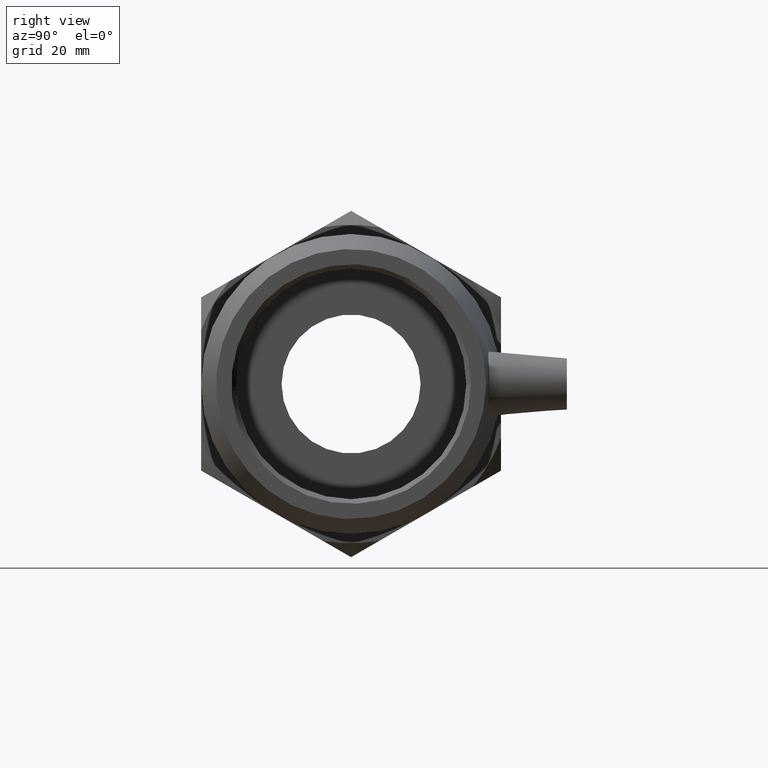
[diagram: clean part render]
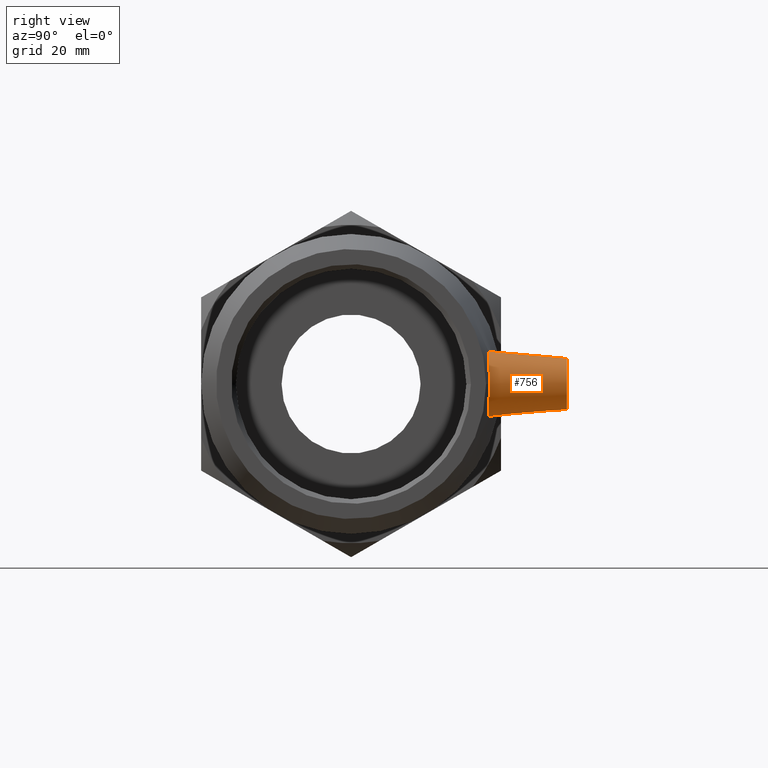
[diagram: same view with one face highlighted and labeled with its STEP entity id]
A machine part, right view. The second image highlights one B-rep face of the part: STEP entity #756.
In plain terms, the highlighted conical surface has half-angle 5 deg.
Its self-contained STEP definition (entity closure, byte-faithful):
#15=B_SPLINE_CURVE_WITH_KNOTS('',3,(#1338,#1339,#1340,#1341,#1342,#1343,
#1344,#1345,#1346,#1347,#1348,#1349,#1350,#1351,#1352,#1353,#1354,#1355,
#1356,#1357,#1358,#1359,#1360,#1361,#1362,#1363,#1364,#1365,#1366,#1367,
#1368,#1369,#1370,#1371),.UNSPECIFIED.,.T.,.F.,(4,2,2,2,2,2,2,2,2,2,2,2,
2,2,2,2,4),(0.,0.344355823465519,0.688711646931037,1.0268337448189,1.36495584270676,
1.70307794059462,2.04120003848249,2.385555861948,2.72991168541352,3.05641943330973,
3.38292718120595,3.71121514704426,4.03950311288258,4.36779107872089,4.69607904455921,
5.02258679245542,5.34909454035163),.UNSPECIFIED.);
#141=FACE_BOUND('',#270,.T.);
#197=FACE_OUTER_BOUND('',#269,.T.);
#269=EDGE_LOOP('',(#670));
#270=EDGE_LOOP('',(#671));
#330=CIRCLE('',#852,7.);
#399=VERTEX_POINT('',#1335);
#400=VERTEX_POINT('',#1337);
#494=EDGE_CURVE('',#399,#399,#330,.T.);
#495=EDGE_CURVE('',#400,#400,#15,.T.);
#670=ORIENTED_EDGE('',*,*,#494,.F.);
#671=ORIENTED_EDGE('',*,*,#495,.F.);
#707=CONICAL_SURFACE('',#851,7.,5.);
#756=ADVANCED_FACE('',(#197,#141),#707,.T.);
#851=AXIS2_PLACEMENT_3D('',#1334,#1059,#1060);
#852=AXIS2_PLACEMENT_3D('',#1336,#1061,#1062);
#1059=DIRECTION('center_axis',(0.,-1.,0.));
#1060=DIRECTION('ref_axis',(-1.,0.,0.));
#1061=DIRECTION('center_axis',(0.,1.,0.));
#1062=DIRECTION('ref_axis',(-1.,0.,0.));
#1334=CARTESIAN_POINT('Origin',(41.65,59.,0.));
#1335=CARTESIAN_POINT('',(48.65,59.,8.57252759403147E-16));
#1336=CARTESIAN_POINT('Origin',(41.65,59.,0.));
#1337=CARTESIAN_POINT('',(41.9376068201201,37.6878551767842,8.85990420529277));
#1338=CARTESIAN_POINT('Ctrl Pts',(41.9376068201203,37.6878551767842,8.85990420529277));
#1339=CARTESIAN_POINT('Ctrl Pts',(40.7958369593861,37.8027381921111,8.88691164590824));
#1340=CARTESIAN_POINT('Ctrl Pts',(39.5844167052391,37.9829967249448,8.67702345975848));
#1341=CARTESIAN_POINT('Ctrl Pts',(37.3636572461179,38.4111003090207,7.77971429765735));
#1342=CARTESIAN_POINT('Ctrl Pts',(36.3535445598685,38.6557295691291,7.0926764624993));
#1343=CARTESIAN_POINT('Ctrl Pts',(34.7732197104203,39.0772807218682,5.51148762438308));
#1344=CARTESIAN_POINT('Ctrl Pts',(34.0910841084743,39.282966746045,4.51620295802403));
#1345=CARTESIAN_POINT('Ctrl Pts',(33.1825549992924,39.5673840405935,2.32423752874025));
#1346=CARTESIAN_POINT('Ctrl Pts',(32.9565316838949,39.6435685738495,1.12707365962621));
#1347=CARTESIAN_POINT('Ctrl Pts',(32.9565316838949,39.6435685738495,-1.12707365962621));
#1348=CARTESIAN_POINT('Ctrl Pts',(33.1825549992924,39.5673840405935,-2.32423752874024));
#1349=CARTESIAN_POINT('Ctrl Pts',(34.0910841084743,39.282966746045,-4.51620295802403));
#1350=CARTESIAN_POINT('Ctrl Pts',(34.7732197104203,39.0772807218682,-5.51148762438308));
#1351=CARTESIAN_POINT('Ctrl Pts',(36.3535445598685,38.6557295691291,-7.0926764624993));
#1352=CARTESIAN_POINT('Ctrl Pts',(37.3636572461179,38.4111003090207,-7.77971429765735));
#1353=CARTESIAN_POINT('Ctrl Pts',(39.5844167052391,37.9829967249448,-8.67702345975848));
#1354=CARTESIAN_POINT('Ctrl Pts',(40.7958369593861,37.8027381921111,-8.88691164590824));
#1355=CARTESIAN_POINT('Ctrl Pts',(43.0201983735093,37.5789265859202,-8.83429656920561));
#1356=CARTESIAN_POINT('Ctrl Pts',(44.1735713456759,37.515614375962,-8.5914786396559));
#1357=CARTESIAN_POINT('Ctrl Pts',(46.2881472599534,37.4934123582677,-7.66185399635411));
#1358=CARTESIAN_POINT('Ctrl Pts',(47.249356435864,37.5315457860825,-6.97513494081177));
#1359=CARTESIAN_POINT('Ctrl Pts',(48.7648891145901,37.6311222348323,-5.40758378100092));
#1360=CARTESIAN_POINT('Ctrl Pts',(49.420724206617,37.6989849278095,-4.41933534697225));
#1361=CARTESIAN_POINT('Ctrl Pts',(50.2893558016887,37.7997214624126,-2.26275360094603));
#1362=CARTESIAN_POINT('Ctrl Pts',(50.5021322325417,37.830031710418,-1.09429321946105));
#1363=CARTESIAN_POINT('Ctrl Pts',(50.5021322325417,37.830031710418,1.09429321946105));
#1364=CARTESIAN_POINT('Ctrl Pts',(50.2893558016887,37.7997214624126,2.26275360094603));
#1365=CARTESIAN_POINT('Ctrl Pts',(49.420724206617,37.6989849278095,4.41933534697225));
#1366=CARTESIAN_POINT('Ctrl Pts',(48.7648891145901,37.6311222348323,5.40758378100092));
#1367=CARTESIAN_POINT('Ctrl Pts',(47.249356435864,37.5315457860825,6.97513494081177));
#1368=CARTESIAN_POINT('Ctrl Pts',(46.2881472599534,37.4934123582677,7.66185399635411));
#1369=CARTESIAN_POINT('Ctrl Pts',(44.1735713456759,37.515614375962,8.5914786396559));
#1370=CARTESIAN_POINT('Ctrl Pts',(43.0201983735093,37.5789265859202,8.83429656920561));
#1371=CARTESIAN_POINT('Ctrl Pts',(41.9376068201203,37.6878551767842,8.85990420529277));